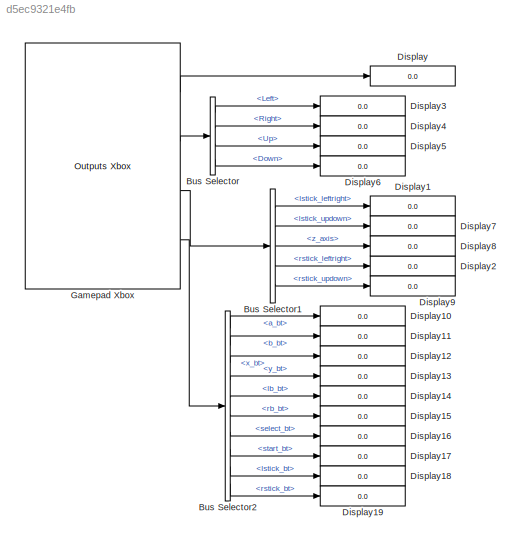
MODEL slx_d5ec9321e4fb
KIND model
CONFIG AbsTol = auto
CONFIG EnableMultiTasking = off
CONFIG FixedStep = auto
CONFIG MaxStep = auto
CONFIG MinStep = auto
CONFIG RelTol = 1e-3
CONFIG SampleTimeConstraint = Unconstrained
CONFIG SolverName = VariableStepAuto
CONFIG StartTime = 0.0
CONFIG StopTime = inf
BLOCK [BusSelector] Bus Selector
  OutputSignals = Left,Right,Up,Down
  Ports = [1, 4]
BLOCK [BusSelector] Bus Selector1
  OutputSignals = lstick_leftright,lstick_updown,z_axis,rstick_leftright,rstick_updown
  Ports = [1, 5]
BLOCK [BusSelector] Bus Selector2
  OutputSignals = a_bt,b_bt,x_bt,y_bt,lb_bt,rb_bt,select_bt,start_bt,lstick_bt,rstick_bt
  Ports = [1, 10]
BLOCK [Display] Display
  Decimation = 1
  Ports = [1]
BLOCK [Display] Display1
  Decimation = 1
  Ports = [1]
BLOCK [Display] Display10
  Decimation = 1
  Ports = [1]
BLOCK [Display] Display11
  Decimation = 1
  Ports = [1]
BLOCK [Display] Display12
  Decimation = 1
  Ports = [1]
BLOCK [Display] Display13
  Decimation = 1
  Ports = [1]
BLOCK [Display] Display14
  Decimation = 1
  Ports = [1]
BLOCK [Display] Display15
  Decimation = 1
  Ports = [1]
BLOCK [Display] Display16
  Decimation = 1
  Ports = [1]
BLOCK [Display] Display17
  Decimation = 1
  Ports = [1]
BLOCK [Display] Display18
  Decimation = 1
  Ports = [1]
BLOCK [Display] Display19
  Decimation = 1
  Ports = [1]
BLOCK [Display] Display2
  Decimation = 1
  Ports = [1]
BLOCK [Display] Display3
  Decimation = 1
  Ports = [1]
BLOCK [Display] Display4
  Decimation = 1
  Ports = [1]
BLOCK [Display] Display5
  Decimation = 1
  Ports = [1]
BLOCK [Display] Display6
  Decimation = 1
  Ports = [1]
BLOCK [Display] Display7
  Decimation = 1
  Ports = [1]
BLOCK [Display] Display8
  Decimation = 1
  Ports = [1]
BLOCK [Display] Display9
  Decimation = 1
  Ports = [1]
BLOCK [Reference] Gamepad Xbox  REF=Gamepad_Xbox/Outputs Xbox
  Ports = [0, 4]
  SourceBlock = Gamepad_Xbox/Outputs Xbox
LINE Bus Selector1:1 -> Display1:1
LINE Bus Selector1:2 -> Display7:1
LINE Bus Selector1:3 -> Display8:1
LINE Bus Selector1:4 -> Display2:1
LINE Bus Selector1:5 -> Display9:1
LINE Bus Selector2:1 -> Display10:1
LINE Bus Selector2:10 -> Display19:1
LINE Bus Selector2:2 -> Display11:1
LINE Bus Selector2:3 -> Display12:1
LINE Bus Selector2:4 -> Display13:1
LINE Bus Selector2:5 -> Display14:1
LINE Bus Selector2:6 -> Display15:1
LINE Bus Selector2:7 -> Display16:1
LINE Bus Selector2:8 -> Display17:1
LINE Bus Selector2:9 -> Display18:1
LINE Bus Selector:1 -> Display3:1
LINE Bus Selector:2 -> Display4:1
LINE Bus Selector:3 -> Display5:1
LINE Bus Selector:4 -> Display6:1
LINE Gamepad Xbox:1 -> Display:1
LINE Gamepad Xbox:2 -> Bus Selector:1
LINE Gamepad Xbox:3 -> Bus Selector1:1
LINE Gamepad Xbox:4 -> Bus Selector2:1
